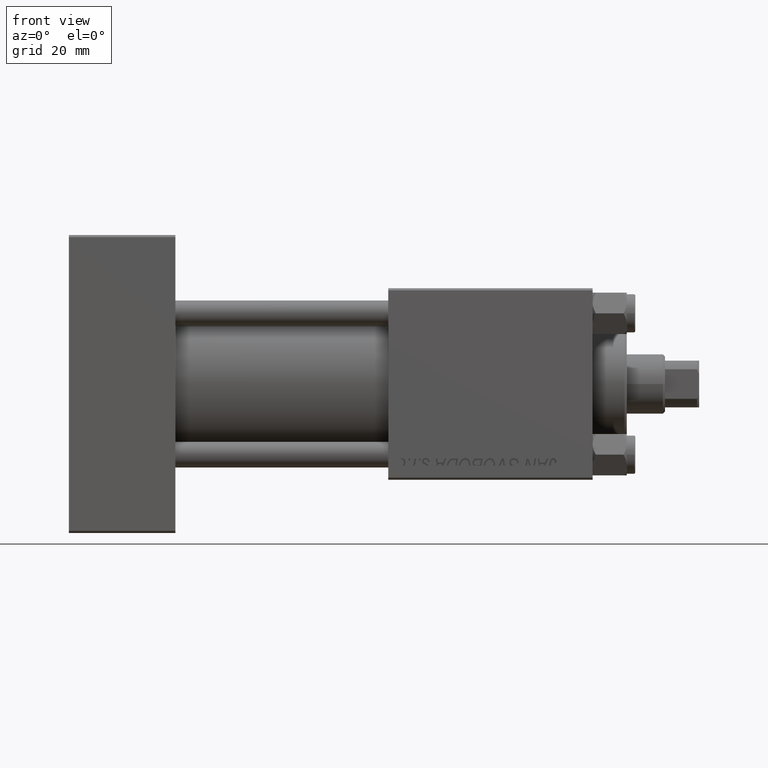
[diagram: clean part render]
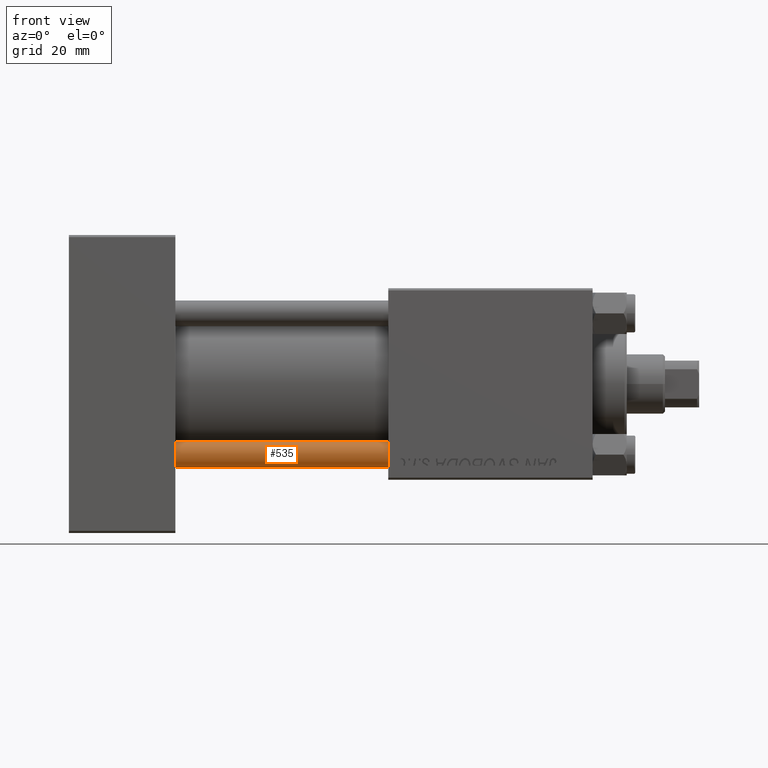
[diagram: same view with one face highlighted and labeled with its STEP entity id]
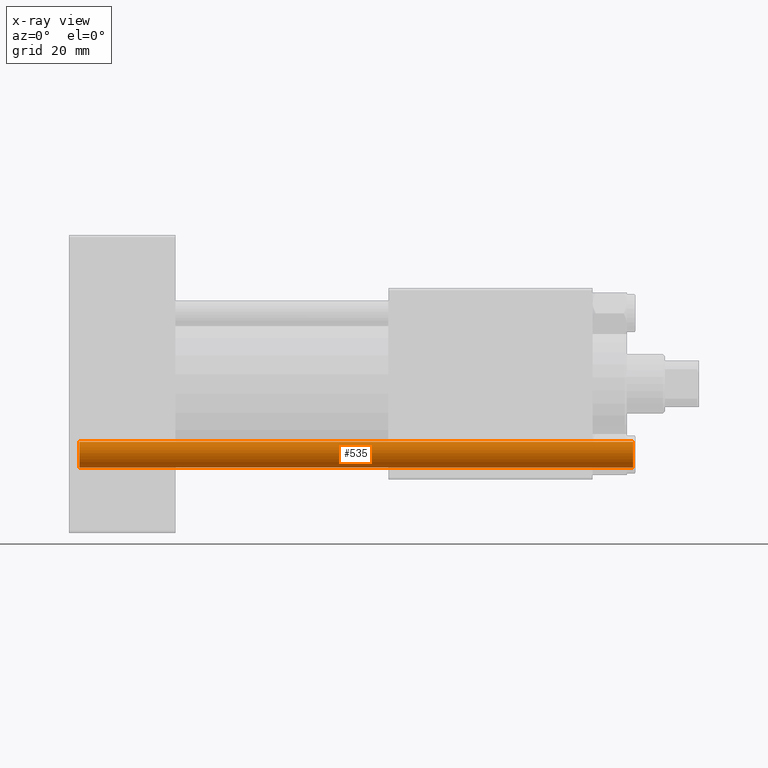
[diagram: x-ray of the same camera — body ghosted, the highlighted face saturated]
A machine part, front view. The second image highlights one B-rep face of the part: STEP entity #535.
The next image is the same camera in x-ray: the body ghosted, the highlighted face saturated — about 0% of this face is hidden behind the body in this view.
In plain terms, the highlighted cylindrical surface (edge-blend (fillet) strip) has radius 3 mm, axis along (1, -0, -0).
Its self-contained STEP definition (entity closure, byte-faithful):
#535 = ADVANCED_FACE ( 'NONE', ( #44650 ), #24667, .T. ) ;
#771 = CARTESIAN_POINT ( 'NONE',  ( 0.000000000000000000, 0.000000000000000000, 131.0000000000000000 ) ) ;
#1700 = AXIS2_PLACEMENT_3D ( 'NONE', #771, #5750, #49904 ) ;
#2177 = DIRECTION ( 'NONE',  ( -0.000000000000000000, -0.000000000000000000, -1.000000000000000000 ) ) ;
#3576 = AXIS2_PLACEMENT_3D ( 'NONE', #16388, #20580, #32402 ) ;
#3790 = VECTOR ( 'NONE', #19695, 1000.000000000000000 ) ;
#4658 = EDGE_CURVE ( 'NONE', #33082, #41925, #48859, .T. ) ;
#5750 = DIRECTION ( 'NONE',  ( -0.000000000000000000, -0.000000000000000000, -1.000000000000000000 ) ) ;
#8612 = EDGE_CURVE ( 'NONE', #20848, #9739, #25409, .T. ) ;
#9739 = VERTEX_POINT ( 'NONE', #24508 ) ;
#9755 = ORIENTED_EDGE ( 'NONE', *, *, #4658, .T. ) ;
#13764 = ORIENTED_EDGE ( 'NONE', *, *, #8612, .T. ) ;
#14855 = EDGE_CURVE ( 'NONE', #9739, #33082, #51263, .T. ) ;
#16388 = CARTESIAN_POINT ( 'NONE',  ( 0.000000000000000000, 0.000000000000000000, 130.5000000000000284 ) ) ;
#17525 = ORIENTED_EDGE ( 'NONE', *, *, #21204, .F. ) ;
#18528 = CARTESIAN_POINT ( 'NONE',  ( 3.000000000000000444, 3.673940397442060361E-16, 130.5000000000000284 ) ) ;
#19695 = DIRECTION ( 'NONE',  ( -0.000000000000000000, -0.000000000000000000, -1.000000000000000000 ) ) ;
#19849 = VECTOR ( 'NONE', #2177, 1000.000000000000000 ) ;
#20580 = DIRECTION ( 'NONE',  ( 0.000000000000000000, 0.000000000000000000, -1.000000000000000000 ) ) ;
#20848 = VERTEX_POINT ( 'NONE', #18528 ) ;
#21204 = EDGE_CURVE ( 'NONE', #20848, #41925, #37911, .T. ) ;
#21734 = DIRECTION ( 'NONE',  ( -0.000000000000000000, -0.000000000000000000, 1.000000000000000000 ) ) ;
#24508 = CARTESIAN_POINT ( 'NONE',  ( -3.000000000000000444, 0.000000000000000000, 130.5000000000000284 ) ) ;
#24667 = CYLINDRICAL_SURFACE ( 'NONE', #1700, 3.000000000000000444 ) ;
#25409 = CIRCLE ( 'NONE', #3576, 3.000000000000000444 ) ;
#29209 = CARTESIAN_POINT ( 'NONE',  ( -3.000000000000000444, 0.000000000000000000, 0.5000000000000281997 ) ) ;
#30398 = CARTESIAN_POINT ( 'NONE',  ( 0.000000000000000000, 0.000000000000000000, 0.5000000000000281997 ) ) ;
#32402 = DIRECTION ( 'NONE',  ( 1.000000000000000000, 0.000000000000000000, 0.000000000000000000 ) ) ;
#33082 = VERTEX_POINT ( 'NONE', #29209 ) ;
#34079 = DIRECTION ( 'NONE',  ( 1.000000000000000000, 0.000000000000000000, 0.000000000000000000 ) ) ;
#37911 = LINE ( 'NONE', #42643, #19849 ) ;
#38767 = CARTESIAN_POINT ( 'NONE',  ( 3.000000000000000444, 3.673940397442060361E-16, 0.5000000000000281997 ) ) ;
#41925 = VERTEX_POINT ( 'NONE', #38767 ) ;
#42160 = AXIS2_PLACEMENT_3D ( 'NONE', #30398, #21734, #34079 ) ;
#42205 = ORIENTED_EDGE ( 'NONE', *, *, #14855, .T. ) ;
#42643 = CARTESIAN_POINT ( 'NONE',  ( 3.000000000000000444, 3.673940397442060361E-16, 131.0000000000000000 ) ) ;
#43099 = CARTESIAN_POINT ( 'NONE',  ( -3.000000000000000444, 0.000000000000000000, 131.0000000000000000 ) ) ;
#44650 = FACE_OUTER_BOUND ( 'NONE', #51893, .T. ) ;
#48859 = CIRCLE ( 'NONE', #42160, 3.000000000000000444 ) ;
#49904 = DIRECTION ( 'NONE',  ( -1.000000000000000000, 0.000000000000000000, 0.000000000000000000 ) ) ;
#51263 = LINE ( 'NONE', #43099, #3790 ) ;
#51893 = EDGE_LOOP ( 'NONE', ( #17525, #13764, #42205, #9755 ) ) ;